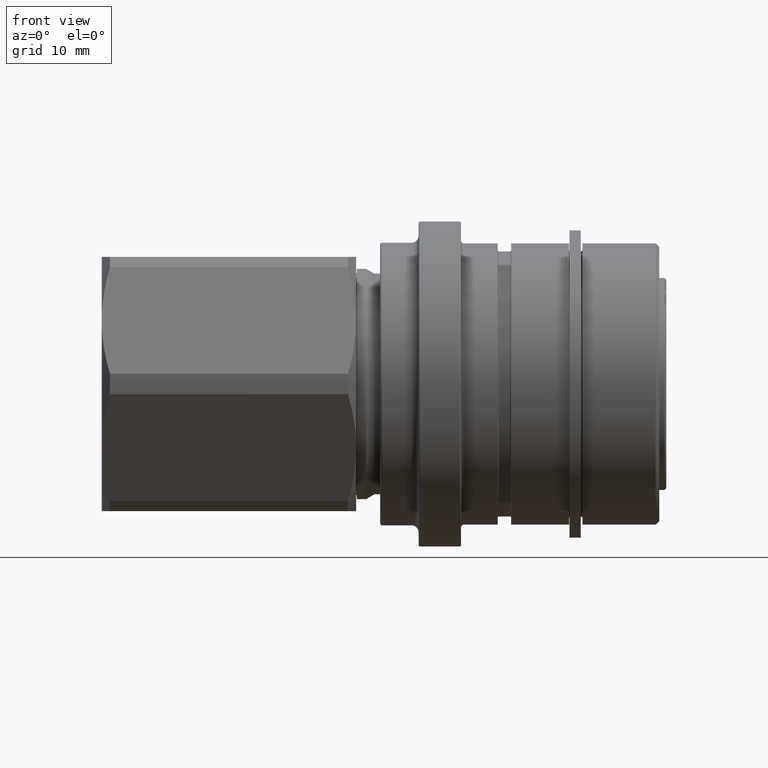
[diagram: clean part render]
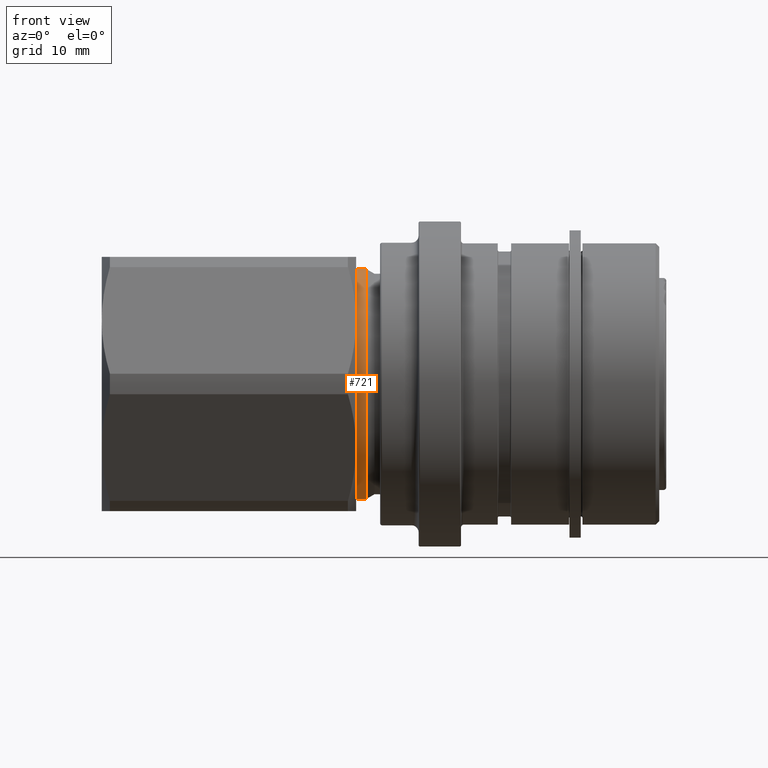
[diagram: same view with one face highlighted and labeled with its STEP entity id]
A machine part, front view. The second image highlights one B-rep face of the part: STEP entity #721.
In plain terms, the highlighted cylindrical surface (partial cylindrical patch) has radius 16.3 mm, axis along (1, -0, -0).
Its self-contained STEP definition (entity closure, byte-faithful):
#159 = DIRECTION ( 'NONE',  ( 0.0000000000000000000, 0.0000000000000000000, -1.000000000000000000 ) ) ;
#179 = CARTESIAN_POINT ( 'NONE',  ( 9.500000000000000000, 1.996174282610186000E-015, 16.30000000000000100 ) ) ;
#211 = DIRECTION ( 'NONE',  ( 1.000000000000000000, -0.0000000000000000000, -0.0000000000000000000 ) ) ;
#256 = CARTESIAN_POINT ( 'NONE',  ( 0.0000000000000000000, 0.0000000000000000000, 0.0000000000000000000 ) ) ;
#346 = EDGE_LOOP ( 'NONE', ( #1174, #1143, #1202, #1165 ) ) ;
#721 = ADVANCED_FACE ( 'NONE', ( #3297 ), #3312, .T. ) ;
#727 = VERTEX_POINT ( 'NONE', #179 ) ;
#761 = VERTEX_POINT ( 'NONE', #4343 ) ;
#932 = VERTEX_POINT ( 'NONE', #4288 ) ;
#959 = VERTEX_POINT ( 'NONE', #4016 ) ;
#1143 = ORIENTED_EDGE ( 'NONE', *, *, #2035, .T. ) ;
#1165 = ORIENTED_EDGE ( 'NONE', *, *, #1942, .F. ) ;
#1174 = ORIENTED_EDGE ( 'NONE', *, *, #2085, .F. ) ;
#1202 = ORIENTED_EDGE ( 'NONE', *, *, #1912, .T. ) ;
#1451 = CARTESIAN_POINT ( 'NONE',  ( 10.80000000000000100, 0.0000000000000000000, 0.0000000000000000000 ) ) ;
#1516 = DIRECTION ( 'NONE',  ( 1.000000000000000000, -0.0000000000000000000, -0.0000000000000000000 ) ) ;
#1671 = DIRECTION ( 'NONE',  ( 0.0000000000000000000, 0.0000000000000000000, -1.000000000000000000 ) ) ;
#1791 = CIRCLE ( 'NONE', #2702, 16.30000000000000100 ) ;
#1804 = VECTOR ( 'NONE', #2358, 1000.000000000000000 ) ;
#1823 = LINE ( 'NONE', #2449, #1804 ) ;
#1912 = EDGE_CURVE ( 'NONE', #761, #959, #3014, .T. ) ;
#1942 = EDGE_CURVE ( 'NONE', #932, #959, #2992, .T. ) ;
#2035 = EDGE_CURVE ( 'NONE', #727, #761, #1791, .T. ) ;
#2085 = EDGE_CURVE ( 'NONE', #727, #932, #1823, .T. ) ;
#2280 = DIRECTION ( 'NONE',  ( 0.0000000000000000000, 0.0000000000000000000, -1.000000000000000000 ) ) ;
#2351 = DIRECTION ( 'NONE',  ( 1.000000000000000000, -0.0000000000000000000, -0.0000000000000000000 ) ) ;
#2358 = DIRECTION ( 'NONE',  ( 1.000000000000000000, -0.0000000000000000000, -0.0000000000000000000 ) ) ;
#2428 = CARTESIAN_POINT ( 'NONE',  ( 9.500000000000000000, 0.0000000000000000000, 0.0000000000000000000 ) ) ;
#2449 = CARTESIAN_POINT ( 'NONE',  ( 0.0000000000000000000, 1.996174282610186000E-015, 16.30000000000000100 ) ) ;
#2702 = AXIS2_PLACEMENT_3D ( 'NONE', #2428, #2351, #2280 ) ;
#2718 = AXIS2_PLACEMENT_3D ( 'NONE', #1451, #1516, #1671 ) ;
#2840 = AXIS2_PLACEMENT_3D ( 'NONE', #256, #211, #159 ) ;
#2992 = CIRCLE ( 'NONE', #2718, 16.30000000000000100 ) ;
#2998 = VECTOR ( 'NONE', #4250, 1000.000000000000000 ) ;
#3014 = LINE ( 'NONE', #4257, #2998 ) ;
#3297 = FACE_OUTER_BOUND ( 'NONE', #346, .T. ) ;
#3312 = CYLINDRICAL_SURFACE ( 'NONE', #2840, 16.30000000000000100 ) ;
#4016 = CARTESIAN_POINT ( 'NONE',  ( 10.80000000000000100, 1.996174282610186000E-015, -16.30000000000000100 ) ) ;
#4250 = DIRECTION ( 'NONE',  ( 1.000000000000000000, -0.0000000000000000000, -0.0000000000000000000 ) ) ;
#4257 = CARTESIAN_POINT ( 'NONE',  ( 0.0000000000000000000, 0.0000000000000000000, -16.30000000000000100 ) ) ;
#4288 = CARTESIAN_POINT ( 'NONE',  ( 10.80000000000000100, 0.0000000000000000000, 16.30000000000000100 ) ) ;
#4343 = CARTESIAN_POINT ( 'NONE',  ( 9.500000000000000000, 0.0000000000000000000, -16.30000000000000100 ) ) ;